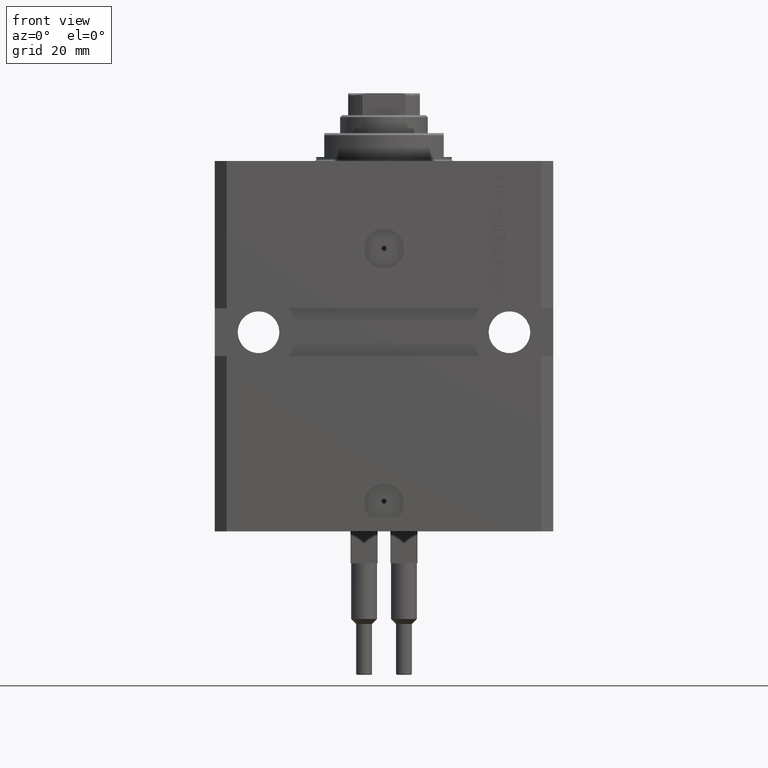
[diagram: clean part render]
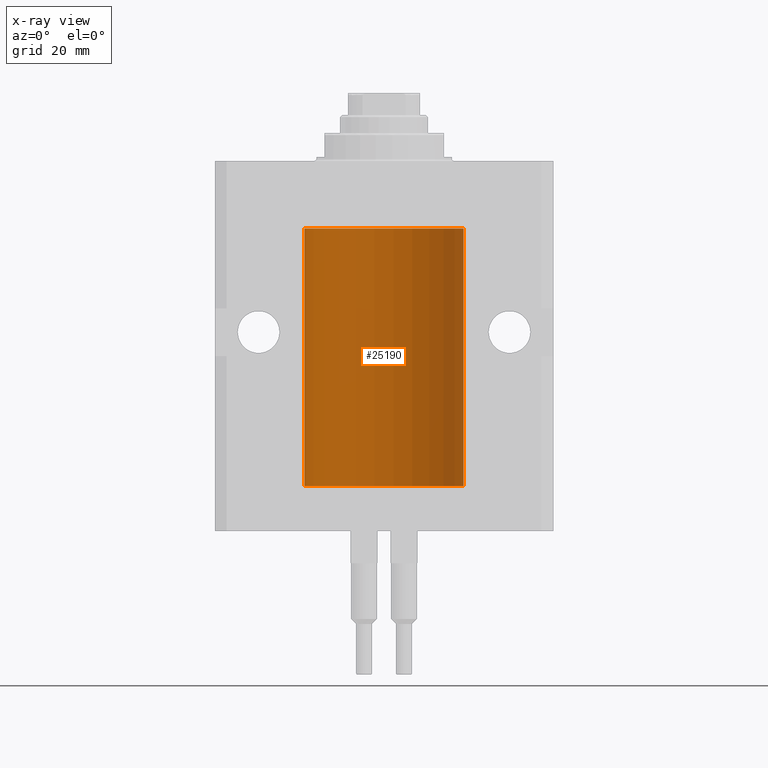
[diagram: x-ray — body ghosted, one internal face saturated and labeled with its STEP entity id]
A machine part, front view, then the same camera in x-ray: the body is ghosted and one INTERNAL B-rep face — a face not visible from any outside direction — is saturated and labeled: STEP entity #25190.
In plain terms, the highlighted cylindrical surface (partial cylindrical patch) has radius 20 mm, axis along (0, 0, 1).
Its self-contained STEP definition (entity closure, byte-faithful):
#88 = CARTESIAN_POINT ( 'NONE',  ( -20.00000000000000000, 2.449293598294706513E-15, -81.59999999999999432 ) ) ;
#249 = CARTESIAN_POINT ( 'NONE',  ( 20.00000000000010303, 3.555666352936568165E-13, -78.37499999999667466 ) ) ;
#1381 = CARTESIAN_POINT ( 'NONE',  ( 0.000000000000000000, 0.000000000000000000, -81.59999999999999432 ) ) ;
#1893 = VERTEX_POINT ( 'NONE', #46857 ) ;
#2318 = ORIENTED_EDGE ( 'NONE', *, *, #15235, .F. ) ;
#2397 = CARTESIAN_POINT ( 'NONE',  ( 19.99638788807192924, 0.3844440352705359998, -79.49948058986481669 ) ) ;
#2787 = CARTESIAN_POINT ( 'NONE',  ( 19.99769474220010679, 0.3253030616682399678, -23.44140633897632142 ) ) ;
#2888 = EDGE_CURVE ( 'NONE', #26904, #36839, #33495, .T. ) ;
#2976 = ORIENTED_EDGE ( 'NONE', *, *, #22454, .T. ) ;
#3040 = CIRCLE ( 'NONE', #5402, 20.00000000000000000 ) ;
#3211 = CARTESIAN_POINT ( 'NONE',  ( -19.99947377218718003, 0.1636439183262797525, -78.39126364004653169 ) ) ;
#4045 = EDGE_CURVE ( 'NONE', #42397, #1893, #14144, .T. ) ;
#4368 = CARTESIAN_POINT ( 'NONE',  ( 19.99023198964909298, 0.6250000000081508134, -23.99999999999910472 ) ) ;
#4675 = VERTEX_POINT ( 'NONE', #11527 ) ;
#5084 = FACE_OUTER_BOUND ( 'NONE', #25290, .T. ) ;
#5131 = CARTESIAN_POINT ( 'NONE',  ( 19.99766100389833312, 0.3150982863324784944, -79.54594438241281296 ) ) ;
#5402 = AXIS2_PLACEMENT_3D ( 'NONE', #23836, #27562, #46854 ) ;
#5806 = DIRECTION ( 'NONE',  ( -0.000000000000000000, -0.000000000000000000, 1.000000000000000000 ) ) ;
#5888 = CARTESIAN_POINT ( 'NONE',  ( 20.00000000000000000, 0.000000000000000000, -81.59999999999999432 ) ) ;
#5937 = CARTESIAN_POINT ( 'NONE',  ( 19.99023198964909298, 0.6250000000081508134, -23.99999999999910472 ) ) ;
#6029 = VERTEX_POINT ( 'NONE', #13013 ) ;
#6232 = CARTESIAN_POINT ( 'NONE',  ( -19.99253506710754991, 0.5587120480776751608, -24.32511620830248589 ) ) ;
#6416 = CARTESIAN_POINT ( 'NONE',  ( 19.99638788807192924, 0.3844440352705356112, -24.49948058986480603 ) ) ;
#6554 = VERTEX_POINT ( 'NONE', #26056 ) ;
#8233 = DIRECTION ( 'NONE',  ( -0.000000000000000000, -0.000000000000000000, 1.000000000000000000 ) ) ;
#8513 = VERTEX_POINT ( 'NONE', #4368 ) ;
#9339 = CARTESIAN_POINT ( 'NONE',  ( 19.99947351343144319, 0.1636818329565372654, -79.60872855715646779 ) ) ;
#9518 = B_SPLINE_CURVE_WITH_KNOTS ( 'NONE', 3,
 ( #16876, #13904, #40162, #28757, #25050, #17371, #48063, #35947, #6232, #13414, #43380, #28029 ),
 .UNSPECIFIED., .F., .F.,
 ( 4, 2, 2, 2, 2, 4 ),
 ( 5.848927291235706941E-19, 0.0002442693137305304075, 0.0004885386274610601645, 0.0009770772549221123059, 0.001465615882383164339, 0.001954154509844215938 ),
 .UNSPECIFIED. ) ;
#9966 = CARTESIAN_POINT ( 'NONE',  ( 19.99023198964909298, 0.6250000000081508134, -23.99999999999910472 ) ) ;
#10211 = CARTESIAN_POINT ( 'NONE',  ( 19.99999999999999645, 0.1631318418333146114, -23.37500000000016698 ) ) ;
#10890 = CARTESIAN_POINT ( 'NONE',  ( 19.99999999999999645, 0.1631318418333158327, -78.37500000000015632 ) ) ;
#11527 = CARTESIAN_POINT ( 'NONE',  ( -20.00000000000000000, 2.449293598294706513E-15, -17.00000000000000000 ) ) ;
#11678 = DIRECTION ( 'NONE',  ( -0.000000000000000000, -0.000000000000000000, 1.000000000000000000 ) ) ;
#12160 = VECTOR ( 'NONE', #11678, 1000.000000000000000 ) ;
#13013 = CARTESIAN_POINT ( 'NONE',  ( -20.00000000000000000, -2.867584836844214272E-15, -23.37500000000000000 ) ) ;
#13414 = CARTESIAN_POINT ( 'NONE',  ( -19.99769349528941120, 0.3253804398728645242, -24.55855820727680339 ) ) ;
#13463 = VERTEX_POINT ( 'NONE', #33623 ) ;
#13775 = CARTESIAN_POINT ( 'NONE',  ( 19.99023198964909298, 0.6250000000081574747, -78.99999999999911893 ) ) ;
#13904 = CARTESIAN_POINT ( 'NONE',  ( -19.99999999999999645, 0.08259581631026780002, -23.37500000000000000 ) ) ;
#14111 = CARTESIAN_POINT ( 'NONE',  ( -19.99638934703457238, 0.3843678041337651452, -78.50046362978099523 ) ) ;
#14144 = LINE ( 'NONE', #28508, #22381 ) ;
#14846 = CARTESIAN_POINT ( 'NONE',  ( -19.99256581701871838, 0.5573276956901996870, -78.67348565770949165 ) ) ;
#15230 = EDGE_CURVE ( 'NONE', #24646, #1893, #39736, .T. ) ;
#15235 = EDGE_CURVE ( 'NONE', #24646, #22964, #44316, .T. ) ;
#15681 = VERTEX_POINT ( 'NONE', #23681 ) ;
#15817 = DIRECTION ( 'NONE',  ( -0.000000000000000000, -0.000000000000000000, 1.000000000000000000 ) ) ;
#16187 = EDGE_CURVE ( 'NONE', #15681, #13463, #30793, .T. ) ;
#16819 = CARTESIAN_POINT ( 'NONE',  ( 20.00000000000000000, 1.042771508482559297E-15, -24.62500000000000000 ) ) ;
#16848 = AXIS2_PLACEMENT_3D ( 'NONE', #1381, #5806, #24386 ) ;
#16876 = CARTESIAN_POINT ( 'NONE',  ( -20.00000000000000000, -2.867584836844214272E-15, -23.37500000000000000 ) ) ;
#17371 = CARTESIAN_POINT ( 'NONE',  ( -19.99256581701871482, 0.5573276956902001311, -23.67348565770948809 ) ) ;
#17461 = ORIENTED_EDGE ( 'NONE', *, *, #29150, .T. ) ;
#17750 = B_SPLINE_CURVE_WITH_KNOTS ( 'NONE', 3,
 ( #39047, #43255, #9339, #5131, #2397, #47688, #47447, #13775 ),
 .UNSPECIFIED., .F., .F.,
 ( 4, 2, 2, 4 ),
 ( 3.944467879762244826E-18, 0.0002443247335684012008, 0.0004886494671367983900, 0.0009772989342736221503 ),
 .UNSPECIFIED. ) ;
#18069 = CARTESIAN_POINT ( 'NONE',  ( -19.99023018003212471, 0.6250578794725522025, -79.16284809704971792 ) ) ;
#18131 = CARTESIAN_POINT ( 'NONE',  ( 20.00000000000010303, 3.555666340528858977E-13, -23.37499999999667111 ) ) ;
#18318 = LINE ( 'NONE', #33182, #24204 ) ;
#18550 = CARTESIAN_POINT ( 'NONE',  ( -20.00000000000000000, -1.124177324826063808E-14, -78.37500000000000000 ) ) ;
#18558 = CARTESIAN_POINT ( 'NONE',  ( 19.99023198964909298, 0.6250000000081574747, -78.99999999999911893 ) ) ;
#18905 = VECTOR ( 'NONE', #45137, 1000.000000000000000 ) ;
#19368 = CARTESIAN_POINT ( 'NONE',  ( 20.00000000000000000, 0.000000000000000000, -81.59999999999999432 ) ) ;
#20548 = CARTESIAN_POINT ( 'NONE',  ( 19.99023198964933812, 0.6250000000002681189, -24.16311014829328130 ) ) ;
#21552 = ORIENTED_EDGE ( 'NONE', *, *, #4045, .F. ) ;
#21976 = CARTESIAN_POINT ( 'NONE',  ( -20.00000000000010303, 3.580159278407742946E-13, -24.62500000000332889 ) ) ;
#22318 = LINE ( 'NONE', #34694, #12160 ) ;
#22365 = CARTESIAN_POINT ( 'NONE',  ( 20.00000000000000000, -4.058908006348821872E-15, -79.62500000000000000 ) ) ;
#22381 = VECTOR ( 'NONE', #43863, 1000.000000000000000 ) ;
#22454 = EDGE_CURVE ( 'NONE', #8513, #6554, #32738, .T. ) ;
#22886 = ORIENTED_EDGE ( 'NONE', *, *, #35206, .T. ) ;
#22895 = CIRCLE ( 'NONE', #46612, 20.00000000000000000 ) ;
#22964 = VERTEX_POINT ( 'NONE', #21976 ) ;
#23660 = CYLINDRICAL_SURFACE ( 'NONE', #16848, 20.00000000000000000 ) ;
#23681 = CARTESIAN_POINT ( 'NONE',  ( 19.99023198964909298, 0.6250000000081574747, -78.99999999999911893 ) ) ;
#23836 = CARTESIAN_POINT ( 'NONE',  ( 0.000000000000000000, 0.000000000000000000, -17.00000000000000000 ) ) ;
#24204 = VECTOR ( 'NONE', #44572, 1000.000000000000000 ) ;
#24386 = DIRECTION ( 'NONE',  ( 1.000000000000000000, 0.000000000000000000, 0.000000000000000000 ) ) ;
#24646 = VERTEX_POINT ( 'NONE', #45870 ) ;
#25050 = CARTESIAN_POINT ( 'NONE',  ( -19.99638934703457593, 0.3843678041337688644, -23.50046362978100944 ) ) ;
#25190 = ADVANCED_FACE ( 'NONE', ( #5084 ), #23660, .F. ) ;
#25290 = EDGE_LOOP ( 'NONE', ( #21552, #42645, #45545, #41907, #41926, #22886, #17461, #2976, #39913, #41618, #27524, #39881, #2318, #47567 ) ) ;
#25838 = LINE ( 'NONE', #88, #18905 ) ;
#26056 = CARTESIAN_POINT ( 'NONE',  ( 20.00000000000010303, 3.555666340528858977E-13, -23.37499999999667111 ) ) ;
#26220 = CARTESIAN_POINT ( 'NONE',  ( -19.99766197842594551, 0.3150331617867603295, -78.45402070102504410 ) ) ;
#26904 = VERTEX_POINT ( 'NONE', #5888 ) ;
#27185 = CARTESIAN_POINT ( 'NONE',  ( -20.00000000000000000, 2.449293598294706513E-15, -81.59999999999999432 ) ) ;
#27524 = ORIENTED_EDGE ( 'NONE', *, *, #45840, .F. ) ;
#27562 = DIRECTION ( 'NONE',  ( 0.000000000000000000, 0.000000000000000000, 1.000000000000000000 ) ) ;
#28029 = CARTESIAN_POINT ( 'NONE',  ( -20.00000000000010303, 3.580159278407742946E-13, -24.62500000000332889 ) ) ;
#28385 = VERTEX_POINT ( 'NONE', #37851 ) ;
#28508 = CARTESIAN_POINT ( 'NONE',  ( -20.00000000000000000, 2.449293598294706513E-15, -81.59999999999999432 ) ) ;
#28757 = CARTESIAN_POINT ( 'NONE',  ( -19.99766197842594906, 0.3150331617867667688, -23.45402070102505476 ) ) ;
#29150 = EDGE_CURVE ( 'NONE', #44710, #8513, #33519, .T. ) ;
#29698 = CARTESIAN_POINT ( 'NONE',  ( 19.99023198964936299, 0.6249999999995806688, -78.83696384779808852 ) ) ;
#30149 = EDGE_CURVE ( 'NONE', #6554, #28385, #22318, .T. ) ;
#30793 = B_SPLINE_CURVE_WITH_KNOTS ( 'NONE', 3,
 ( #18558, #29698, #33660, #34147, #10890, #249 ),
 .UNSPECIFIED., .F., .F.,
 ( 4, 2, 4 ),
 ( 0.0009772989342736221503, 0.001465726722058849005, 0.001954154509844075859 ),
 .UNSPECIFIED. ) ;
#31357 = VECTOR ( 'NONE', #15817, 1000.000000000000000 ) ;
#31931 = CARTESIAN_POINT ( 'NONE',  ( 19.99947351343144675, 0.1636818329565319363, -24.60872855715643936 ) ) ;
#32738 = B_SPLINE_CURVE_WITH_KNOTS ( 'NONE', 3,
 ( #9966, #33470, #41150, #2787, #10211, #18131 ),
 .UNSPECIFIED., .F., .F.,
 ( 4, 2, 4 ),
 ( 0.0009772989342736214998, 0.001465726722058845102, 0.001954154509844068920 ),
 .UNSPECIFIED. ) ;
#33164 = CARTESIAN_POINT ( 'NONE',  ( -20.00000000000000355, 0.1631688615953343080, -79.62499999999984368 ) ) ;
#33182 = CARTESIAN_POINT ( 'NONE',  ( 20.00000000000000000, 0.000000000000000000, -81.59999999999999432 ) ) ;
#33470 = CARTESIAN_POINT ( 'NONE',  ( 19.99023198964935588, 0.6249999999995746736, -23.83696384779806721 ) ) ;
#33495 = LINE ( 'NONE', #19368, #39787 ) ;
#33519 = B_SPLINE_CURVE_WITH_KNOTS ( 'NONE', 3,
 ( #16819, #43818, #31931, #39863, #6416, #43330, #20548, #5937 ),
 .UNSPECIFIED., .F., .F.,
 ( 4, 2, 2, 4 ),
 ( 1.013370767385449693E-18, 0.0002443247335684061339, 0.0004886494671368111836, 0.0009772989342736214998 ),
 .UNSPECIFIED. ) ;
#33623 = CARTESIAN_POINT ( 'NONE',  ( 20.00000000000010303, 3.555666352936568165E-13, -78.37499999999667466 ) ) ;
#33660 = CARTESIAN_POINT ( 'NONE',  ( 19.99253733128256627, 0.5586305947779004466, -78.67476036735259015 ) ) ;
#34147 = CARTESIAN_POINT ( 'NONE',  ( 19.99769474220011034, 0.3253030616682413001, -78.44140633897630721 ) ) ;
#34694 = CARTESIAN_POINT ( 'NONE',  ( 20.00000000000000000, 0.000000000000000000, -81.59999999999999432 ) ) ;
#35206 = EDGE_CURVE ( 'NONE', #13463, #44710, #18318, .T. ) ;
#35947 = CARTESIAN_POINT ( 'NONE',  ( -19.99023018003212471, 0.6250578794725500931, -24.16284809704970371 ) ) ;
#36638 = CARTESIAN_POINT ( 'NONE',  ( -20.00000000000000000, 2.449293598294706513E-15, -81.59999999999999432 ) ) ;
#36839 = VERTEX_POINT ( 'NONE', #22365 ) ;
#37851 = CARTESIAN_POINT ( 'NONE',  ( 20.00000000000000000, 0.000000000000000000, -17.00000000000000000 ) ) ;
#39047 = CARTESIAN_POINT ( 'NONE',  ( 20.00000000000000000, -4.058908006348821872E-15, -79.62500000000000000 ) ) ;
#39427 = DIRECTION ( 'NONE',  ( 0.000000000000000000, 0.000000000000000000, 1.000000000000000000 ) ) ;
#39736 = B_SPLINE_CURVE_WITH_KNOTS ( 'NONE', 3,
 ( #18550, #48742, #3211, #26220, #14111, #14846, #40603, #18069, #41090, #45047, #33164, #44805 ),
 .UNSPECIFIED., .F., .F.,
 ( 4, 2, 2, 2, 2, 4 ),
 ( 1.522880481566060999E-18, 0.0002442693137305179392, 0.0004885386274610343605, 0.0009770772549220966934, 0.001465615882383158918, 0.001954154509844221576 ),
 .UNSPECIFIED. ) ;
#39787 = VECTOR ( 'NONE', #8233, 1000.000000000000000 ) ;
#39863 = CARTESIAN_POINT ( 'NONE',  ( 19.99766100389832957, 0.3150982863324730543, -24.54594438241278453 ) ) ;
#39881 = ORIENTED_EDGE ( 'NONE', *, *, #46701, .T. ) ;
#39913 = ORIENTED_EDGE ( 'NONE', *, *, #30149, .T. ) ;
#40162 = CARTESIAN_POINT ( 'NONE',  ( -19.99947377218718714, 0.1636439183262877461, -23.39126364004656011 ) ) ;
#40603 = CARTESIAN_POINT ( 'NONE',  ( -19.99023380173166231, 0.6249420416828449509, -78.83670793056396064 ) ) ;
#41090 = CARTESIAN_POINT ( 'NONE',  ( -19.99253506710754991, 0.5587120480776742726, -79.32511620830248944 ) ) ;
#41150 = CARTESIAN_POINT ( 'NONE',  ( 19.99253733128256272, 0.5586305947778931191, -23.67476036735258305 ) ) ;
#41618 = ORIENTED_EDGE ( 'NONE', *, *, #43698, .T. ) ;
#41907 = ORIENTED_EDGE ( 'NONE', *, *, #46278, .T. ) ;
#41926 = ORIENTED_EDGE ( 'NONE', *, *, #16187, .T. ) ;
#42397 = VERTEX_POINT ( 'NONE', #27185 ) ;
#42645 = ORIENTED_EDGE ( 'NONE', *, *, #46755, .F. ) ;
#42869 = CARTESIAN_POINT ( 'NONE',  ( 20.00000000000000000, 1.042771508482559297E-15, -24.62500000000000000 ) ) ;
#43255 = CARTESIAN_POINT ( 'NONE',  ( 19.99999999999999645, 0.08261455565447825555, -79.62499999999997158 ) ) ;
#43330 = CARTESIAN_POINT ( 'NONE',  ( 19.99256353007439202, 0.5574106582031151946, -24.32639035180115172 ) ) ;
#43380 = CARTESIAN_POINT ( 'NONE',  ( -20.00000000000000000, 0.1631688615953320320, -24.62499999999985434 ) ) ;
#43615 = DIRECTION ( 'NONE',  ( 1.000000000000000000, 0.000000000000000000, 0.000000000000000000 ) ) ;
#43698 = EDGE_CURVE ( 'NONE', #28385, #4675, #3040, .T. ) ;
#43818 = CARTESIAN_POINT ( 'NONE',  ( 19.99999999999999645, 0.08261455565447869964, -24.62499999999998579 ) ) ;
#43863 = DIRECTION ( 'NONE',  ( -0.000000000000000000, -0.000000000000000000, 1.000000000000000000 ) ) ;
#43870 = CARTESIAN_POINT ( 'NONE',  ( 0.000000000000000000, 0.000000000000000000, -81.59999999999999432 ) ) ;
#44316 = LINE ( 'NONE', #36638, #31357 ) ;
#44572 = DIRECTION ( 'NONE',  ( -0.000000000000000000, -0.000000000000000000, 1.000000000000000000 ) ) ;
#44710 = VERTEX_POINT ( 'NONE', #42869 ) ;
#44805 = CARTESIAN_POINT ( 'NONE',  ( -20.00000000000010303, 3.580159286679549072E-13, -79.62500000000332534 ) ) ;
#45047 = CARTESIAN_POINT ( 'NONE',  ( -19.99769349528941831, 0.3253804398728615266, -79.55855820727680339 ) ) ;
#45137 = DIRECTION ( 'NONE',  ( -0.000000000000000000, -0.000000000000000000, 1.000000000000000000 ) ) ;
#45545 = ORIENTED_EDGE ( 'NONE', *, *, #2888, .T. ) ;
#45840 = EDGE_CURVE ( 'NONE', #6029, #4675, #25838, .T. ) ;
#45870 = CARTESIAN_POINT ( 'NONE',  ( -20.00000000000000000, -1.124177324826063808E-14, -78.37500000000000000 ) ) ;
#46278 = EDGE_CURVE ( 'NONE', #36839, #15681, #17750, .T. ) ;
#46612 = AXIS2_PLACEMENT_3D ( 'NONE', #43870, #39427, #43615 ) ;
#46701 = EDGE_CURVE ( 'NONE', #6029, #22964, #9518, .T. ) ;
#46755 = EDGE_CURVE ( 'NONE', #26904, #42397, #22895, .T. ) ;
#46854 = DIRECTION ( 'NONE',  ( 1.000000000000000000, 0.000000000000000000, 0.000000000000000000 ) ) ;
#46857 = CARTESIAN_POINT ( 'NONE',  ( -20.00000000000010303, 3.580159286679549072E-13, -79.62500000000332534 ) ) ;
#47447 = CARTESIAN_POINT ( 'NONE',  ( 19.99023198964934167, 0.6250000000002757794, -79.16311014829327064 ) ) ;
#47567 = ORIENTED_EDGE ( 'NONE', *, *, #15230, .T. ) ;
#47688 = CARTESIAN_POINT ( 'NONE',  ( 19.99256353007439202, 0.5574106582031174151, -79.32639035180115172 ) ) ;
#48063 = CARTESIAN_POINT ( 'NONE',  ( -19.99023380173166231, 0.6249420416828462832, -23.83670793056396064 ) ) ;
#48742 = CARTESIAN_POINT ( 'NONE',  ( -19.99999999999999289, 0.08259581631026131909, -78.37499999999998579 ) ) ;